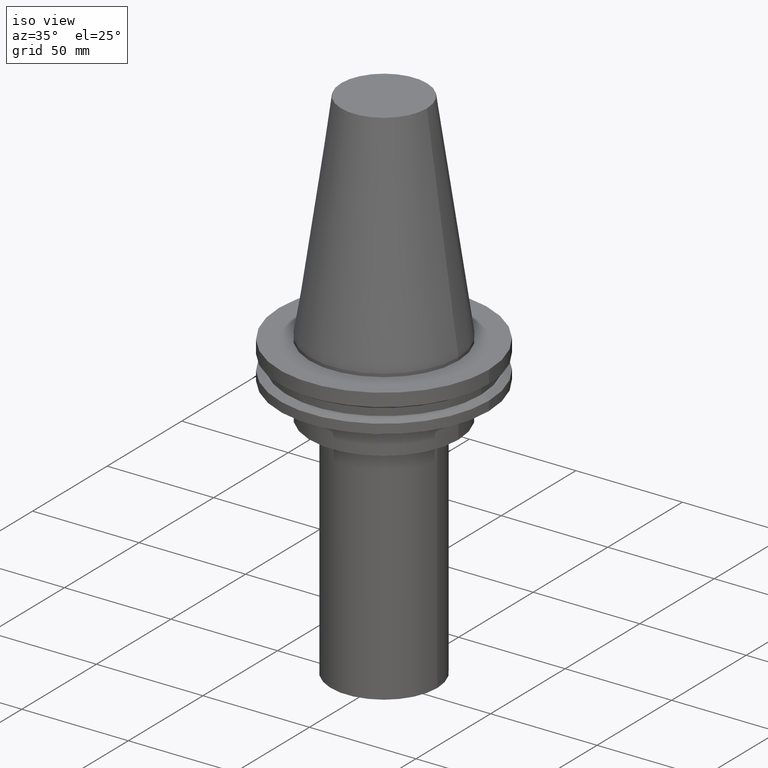
[diagram: clean part render]
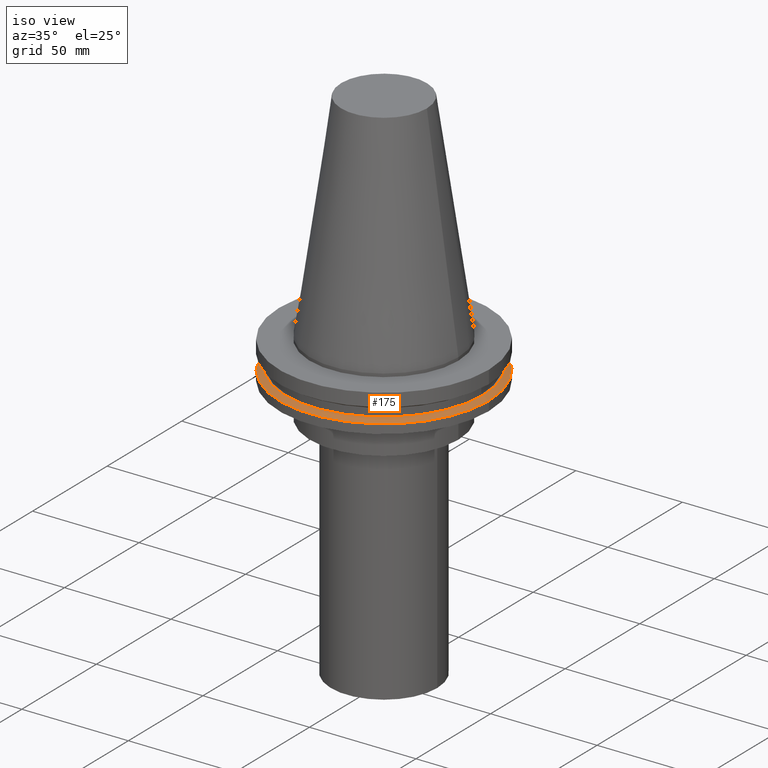
[diagram: same view with one face highlighted and labeled with its STEP entity id]
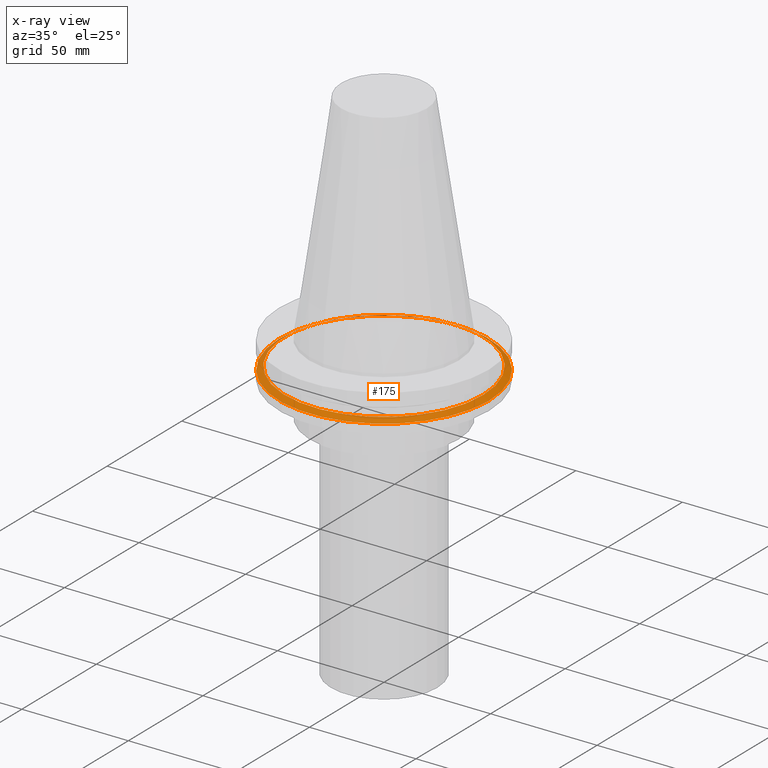
[diagram: x-ray of the same camera — body ghosted, the highlighted face saturated]
A machine part, iso view. The second image highlights one B-rep face of the part: STEP entity #175.
The next image is the same camera in x-ray: the body ghosted, the highlighted face saturated — about 6% of this face is hidden behind the body in this view.
In plain terms, the highlighted conical surface has half-angle 60 deg.
Its self-contained STEP definition (entity closure, byte-faithful):
#23 = ORIENTED_EDGE ( 'NONE', *, *, #115, .T. ) ;
#27 = ORIENTED_EDGE ( 'NONE', *, *, #139, .F. ) ;
#33 = DIRECTION ( 'NONE',  ( 1.000000000000000000, 0.000000000000000000, 0.000000000000000000 ) ) ;
#41 = DIRECTION ( 'NONE',  ( -0.000000000000000000, -0.000000000000000000, 1.000000000000000000 ) ) ;
#70 = AXIS2_PLACEMENT_3D ( 'NONE', #370, #188, #337 ) ;
#72 = DIRECTION ( 'NONE',  ( 1.000000000000000000, 0.000000000000000000, 0.000000000000000000 ) ) ;
#96 = DIRECTION ( 'NONE',  ( -0.000000000000000000, -0.000000000000000000, 1.000000000000000000 ) ) ;
#115 = EDGE_CURVE ( 'NONE', #313, #313, #226, .T. ) ;
#139 = EDGE_CURVE ( 'NONE', #369, #369, #168, .T. ) ;
#152 = EDGE_LOOP ( 'NONE', ( #23 ) ) ;
#168 = CIRCLE ( 'NONE', #323, 46.43919780457007818 ) ;
#175 = ADVANCED_FACE ( 'NONE', ( #263, #291 ), #352, .T. ) ;
#188 = DIRECTION ( 'NONE',  ( 0.000000000000000000, 0.000000000000000000, -1.000000000000000000 ) ) ;
#192 = CARTESIAN_POINT ( 'NONE',  ( 49.21499999999998920, 0.000000000000000000, -14.65761014474876944 ) ) ;
#226 = CIRCLE ( 'NONE', #318, 49.21499999999998920 ) ;
#254 = CARTESIAN_POINT ( 'NONE',  ( 0.000000000000000000, 0.000000000000000000, -13.05499999999999794 ) ) ;
#263 = FACE_BOUND ( 'NONE', #330, .T. ) ;
#291 = FACE_OUTER_BOUND ( 'NONE', #152, .T. ) ;
#313 = VERTEX_POINT ( 'NONE', #192 ) ;
#318 = AXIS2_PLACEMENT_3D ( 'NONE', #380, #41, #72 ) ;
#323 = AXIS2_PLACEMENT_3D ( 'NONE', #254, #96, #33 ) ;
#330 = EDGE_LOOP ( 'NONE', ( #27 ) ) ;
#337 = DIRECTION ( 'NONE',  ( -1.000000000000000000, 0.000000000000000000, 0.000000000000000000 ) ) ;
#352 = CONICAL_SURFACE ( 'NONE', #70, 49.21499999999998920, 1.047197551196554333 ) ;
#369 = VERTEX_POINT ( 'NONE', #374 ) ;
#370 = CARTESIAN_POINT ( 'NONE',  ( 0.000000000000000000, 0.000000000000000000, -14.65761014474876944 ) ) ;
#374 = CARTESIAN_POINT ( 'NONE',  ( 46.43919780457007818, 0.000000000000000000, -13.05499999999999794 ) ) ;
#380 = CARTESIAN_POINT ( 'NONE',  ( 0.000000000000000000, 0.000000000000000000, -14.65761014474876944 ) ) ;